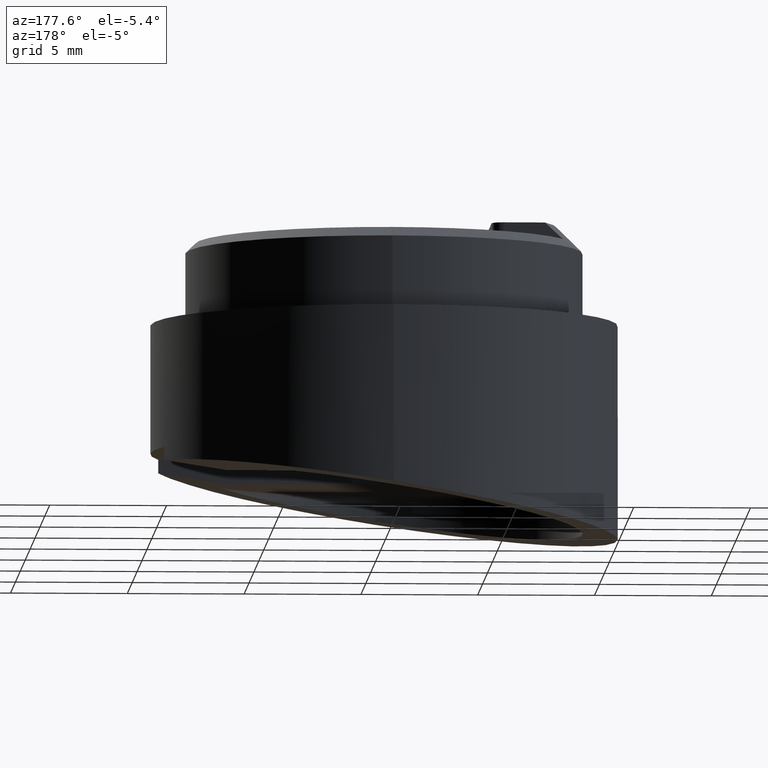
[diagram: clean part render]
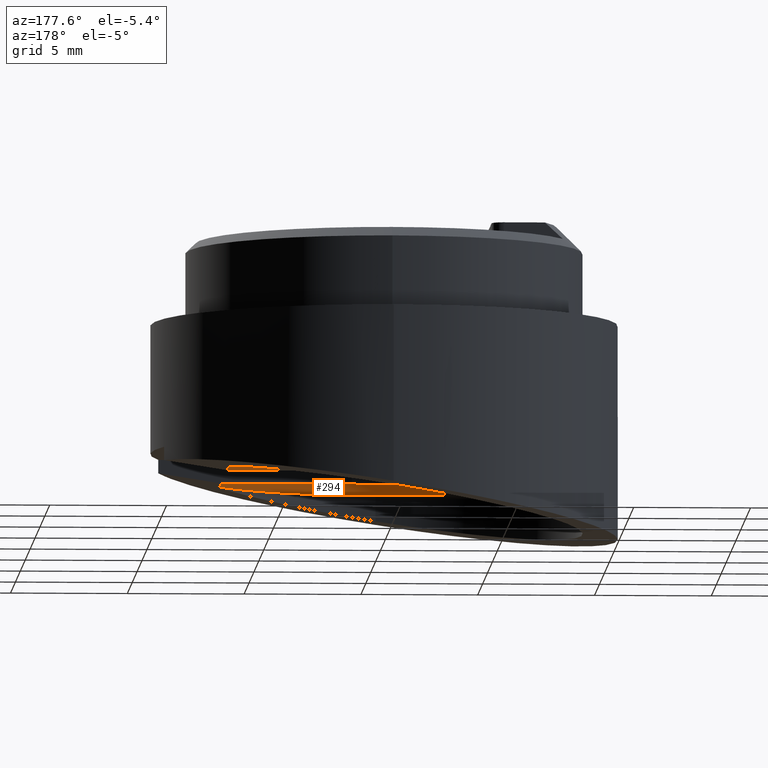
[diagram: same view with one face highlighted and labeled with its STEP entity id]
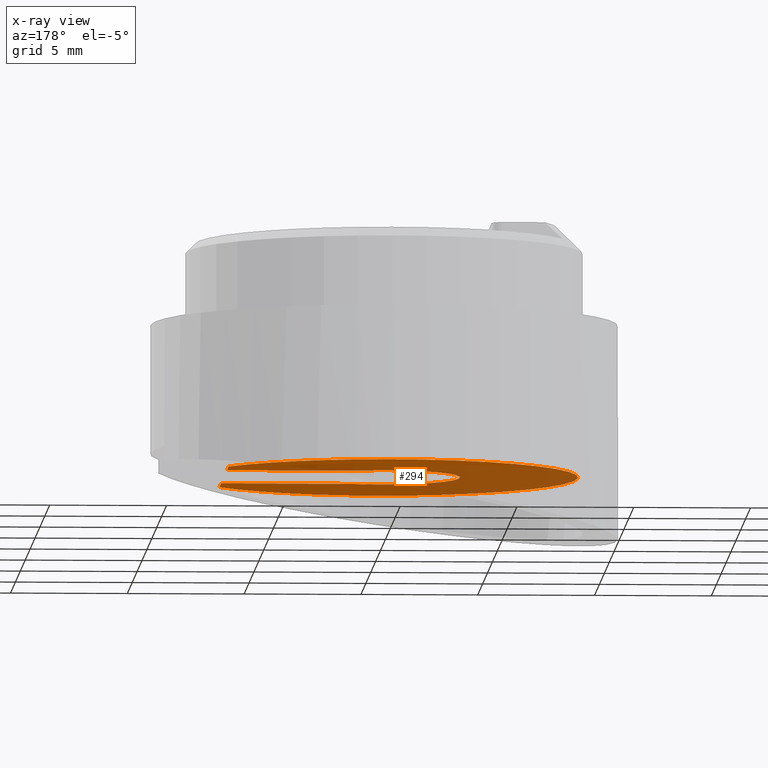
[diagram: x-ray of the same camera — body ghosted, the highlighted face saturated]
A machine part, auxiliary view. The second image highlights one B-rep face of the part: STEP entity #294.
The next image is the same camera in x-ray: the body ghosted, the highlighted face saturated — about 56% of this face is hidden behind the body in this view.
In plain terms, the highlighted planar face has unit normal (-0, -0, 1).
Its self-contained STEP definition (entity closure, byte-faithful):
#6 = CARTESIAN_POINT ( 'NONE',  ( 9.999999999999987600, 0.0000000000000000000, 0.0000000000000000000 ) ) ;
#13 = ORIENTED_EDGE ( 'NONE', *, *, #112, .F. ) ;
#19 = EDGE_CURVE ( 'NONE', #782, #956, #395, .T. ) ;
#48 = LINE ( 'NONE', #96, #1048 ) ;
#69 = DIRECTION ( 'NONE',  ( -1.000000000000000000, -1.774937036747276600E-030, 2.761013168273541300E-030 ) ) ;
#80 = CARTESIAN_POINT ( 'NONE',  ( 9.999999999999987600, 0.0000000000000000000, 0.0000000000000000000 ) ) ;
#96 = CARTESIAN_POINT ( 'NONE',  ( 9.999999999999987600, 2.775557561562891400E-014, -3.000000000000013800 ) ) ;
#104 = VERTEX_POINT ( 'NONE', #1032 ) ;
#111 = DIRECTION ( 'NONE',  ( 0.0000000000000000000, -1.630299697923789500E-030, 1.000000000000000000 ) ) ;
#112 = EDGE_CURVE ( 'NONE', #782, #104, #872, .T. ) ;
#129 = EDGE_CURVE ( 'NONE', #369, #490, #861, .T. ) ;
#146 = CARTESIAN_POINT ( 'NONE',  ( 9.999999999999987600, 8.300000000000057600, -4.930380657631323800E-029 ) ) ;
#156 = CIRCLE ( 'NONE', #221, 8.300000000000029100 ) ;
#161 = CARTESIAN_POINT ( 'NONE',  ( 9.999999999999987600, 6.843124242662368000, -1.479114197289397100E-028 ) ) ;
#173 = CIRCLE ( 'NONE', #507, 3.250000000000011500 ) ;
#198 = DIRECTION ( 'NONE',  ( -1.000000000000000000, -1.774937036747276600E-030, 2.761013168273541300E-030 ) ) ;
#202 = CARTESIAN_POINT ( 'NONE',  ( 10.00000000000000200, 0.0000000000000000000, 3.000000000000013800 ) ) ;
#219 = CARTESIAN_POINT ( 'NONE',  ( 9.999999999999987600, 6.404131785935436300E-029, 3.250000000000000000 ) ) ;
#221 = AXIS2_PLACEMENT_3D ( 'NONE', #1011, #198, #466 ) ;
#226 = CARTESIAN_POINT ( 'NONE',  ( 9.999999999999987600, 1.250000000000028900, -3.000000000000013800 ) ) ;
#230 = CARTESIAN_POINT ( 'NONE',  ( 9.999999999999987600, 6.843124242662365300, 3.000000000000013800 ) ) ;
#234 = VECTOR ( 'NONE', #372, 1000.000000000000000 ) ;
#294 = ADVANCED_FACE ( 'NONE', ( #614 ), #793, .F. ) ;
#352 = DIRECTION ( 'NONE',  ( 0.0000000000000000000, -1.630299697923789500E-030, 1.000000000000000000 ) ) ;
#363 = DIRECTION ( 'NONE',  ( -1.000000000000000000, -1.774937036747276900E-030, -2.859620781426157600E-030 ) ) ;
#367 = DIRECTION ( 'NONE',  ( 1.774937036747270300E-030, 1.000000000000000000, 1.525143922960246300E-030 ) ) ;
#369 = VERTEX_POINT ( 'NONE', #219 ) ;
#372 = DIRECTION ( 'NONE',  ( -1.774937036747270300E-030, -1.000000000000000000, -1.525143922960246300E-030 ) ) ;
#375 = CARTESIAN_POINT ( 'NONE',  ( 10.00000000000000200, 1.250000000000001100, 3.000000000000013800 ) ) ;
#389 = DIRECTION ( 'NONE',  ( -1.000000000000000000, -1.774937036747276600E-030, 2.761013168273541300E-030 ) ) ;
#395 = LINE ( 'NONE', #584, #834 ) ;
#400 = DIRECTION ( 'NONE',  ( -2.859620781426157600E-030, -1.630299697923789900E-030, 1.000000000000000000 ) ) ;
#415 = ORIENTED_EDGE ( 'NONE', *, *, #705, .T. ) ;
#431 = LINE ( 'NONE', #202, #234 ) ;
#449 = AXIS2_PLACEMENT_3D ( 'NONE', #734, #745, #470 ) ;
#462 = CARTESIAN_POINT ( 'NONE',  ( 9.999999999999987600, -1.387201116623463900E-029, 8.300000000000000700 ) ) ;
#466 = DIRECTION ( 'NONE',  ( 0.0000000000000000000, -1.630299697923789900E-030, 1.000000000000000000 ) ) ;
#468 = AXIS2_PLACEMENT_3D ( 'NONE', #80, #978, #841 ) ;
#470 = DIRECTION ( 'NONE',  ( 0.0000000000000000000, -1.630299697923789900E-030, 1.000000000000000000 ) ) ;
#490 = VERTEX_POINT ( 'NONE', #375 ) ;
#501 = VERTEX_POINT ( 'NONE', #1061 ) ;
#507 = AXIS2_PLACEMENT_3D ( 'NONE', #6, #539, #111 ) ;
#514 = CIRCLE ( 'NONE', #468, 3.250000000000011500 ) ;
#520 = DIRECTION ( 'NONE',  ( -2.958228394578784500E-030, -5.257788748177172500E-032, 1.000000000000000000 ) ) ;
#522 = EDGE_CURVE ( 'NONE', #104, #952, #975, .T. ) ;
#537 = ORIENTED_EDGE ( 'NONE', *, *, #19, .T. ) ;
#539 = DIRECTION ( 'NONE',  ( -1.000000000000000000, -1.774937036747276600E-030, 2.761013168273541300E-030 ) ) ;
#546 = VERTEX_POINT ( 'NONE', #226 ) ;
#553 = ORIENTED_EDGE ( 'NONE', *, *, #522, .F. ) ;
#557 = EDGE_CURVE ( 'NONE', #1066, #490, #431, .T. ) ;
#567 = ORIENTED_EDGE ( 'NONE', *, *, #557, .F. ) ;
#584 = CARTESIAN_POINT ( 'NONE',  ( 9.999999999999987600, 6.843124242662368000, -1.479114197289397100E-028 ) ) ;
#589 = CARTESIAN_POINT ( 'NONE',  ( 9.999999999999973400, 6.843124242662371500, -3.000000000000012000 ) ) ;
#594 = ORIENTED_EDGE ( 'NONE', *, *, #1030, .T. ) ;
#614 = FACE_OUTER_BOUND ( 'NONE', #899, .T. ) ;
#620 = ORIENTED_EDGE ( 'NONE', *, *, #756, .F. ) ;
#673 = ORIENTED_EDGE ( 'NONE', *, *, #791, .T. ) ;
#680 = ORIENTED_EDGE ( 'NONE', *, *, #955, .F. ) ;
#705 = EDGE_CURVE ( 'NONE', #546, #813, #173, .T. ) ;
#734 = CARTESIAN_POINT ( 'NONE',  ( 9.999999999999987600, 0.0000000000000000000, 0.0000000000000000000 ) ) ;
#740 = CARTESIAN_POINT ( 'NONE',  ( 9.999999999999928900, 6.843124242662742800, -4.696983138080948800 ) ) ;
#745 = DIRECTION ( 'NONE',  ( -1.000000000000000000, -1.774937036747276600E-030, 2.761013168273541300E-030 ) ) ;
#756 = EDGE_CURVE ( 'NONE', #952, #501, #156, .T. ) ;
#782 = VERTEX_POINT ( 'NONE', #740 ) ;
#791 = EDGE_CURVE ( 'NONE', #1066, #501, #985, .T. ) ;
#793 = PLANE ( 'NONE',  #1071 ) ;
#813 = VERTEX_POINT ( 'NONE', #1059 ) ;
#814 = VECTOR ( 'NONE', #905, 1000.000000000000000 ) ;
#823 = AXIS2_PLACEMENT_3D ( 'NONE', #878, #389, #984 ) ;
#834 = VECTOR ( 'NONE', #520, 1000.000000000000000 ) ;
#841 = DIRECTION ( 'NONE',  ( 0.0000000000000000000, -1.630299697923789500E-030, 1.000000000000000000 ) ) ;
#861 = CIRCLE ( 'NONE', #969, 3.250000000000011500 ) ;
#872 = CIRCLE ( 'NONE', #823, 8.300000000000029100 ) ;
#878 = CARTESIAN_POINT ( 'NONE',  ( 9.999999999999987600, 0.0000000000000000000, 0.0000000000000000000 ) ) ;
#899 = EDGE_LOOP ( 'NONE', ( #415, #594, #1010, #567, #673, #620, #553, #13, #537, #680 ) ) ;
#905 = DIRECTION ( 'NONE',  ( -2.958228394578784500E-030, -5.257788748177172500E-032, 1.000000000000000000 ) ) ;
#948 = CARTESIAN_POINT ( 'NONE',  ( 9.999999999999987600, 0.0000000000000000000, 0.0000000000000000000 ) ) ;
#952 = VERTEX_POINT ( 'NONE', #462 ) ;
#955 = EDGE_CURVE ( 'NONE', #546, #956, #48, .T. ) ;
#956 = VERTEX_POINT ( 'NONE', #589 ) ;
#969 = AXIS2_PLACEMENT_3D ( 'NONE', #948, #69, #352 ) ;
#975 = CIRCLE ( 'NONE', #449, 8.300000000000029100 ) ;
#978 = DIRECTION ( 'NONE',  ( -1.000000000000000000, -1.774937036747276600E-030, 2.761013168273541300E-030 ) ) ;
#984 = DIRECTION ( 'NONE',  ( 0.0000000000000000000, -1.630299697923789900E-030, 1.000000000000000000 ) ) ;
#985 = LINE ( 'NONE', #161, #814 ) ;
#1010 = ORIENTED_EDGE ( 'NONE', *, *, #129, .T. ) ;
#1011 = CARTESIAN_POINT ( 'NONE',  ( 9.999999999999987600, 0.0000000000000000000, 0.0000000000000000000 ) ) ;
#1030 = EDGE_CURVE ( 'NONE', #813, #369, #514, .T. ) ;
#1032 = CARTESIAN_POINT ( 'NONE',  ( 9.999999999999987600, 1.028703311283793200E-015, -8.300000000000000700 ) ) ;
#1048 = VECTOR ( 'NONE', #367, 1000.000000000000000 ) ;
#1059 = CARTESIAN_POINT ( 'NONE',  ( 9.999999999999987600, 3.980102097229644700E-016, -3.250000000000000000 ) ) ;
#1061 = CARTESIAN_POINT ( 'NONE',  ( 9.999999999999985800, 6.843124242662375100, 4.696983138088484100 ) ) ;
#1066 = VERTEX_POINT ( 'NONE', #230 ) ;
#1071 = AXIS2_PLACEMENT_3D ( 'NONE', #146, #363, #400 ) ;